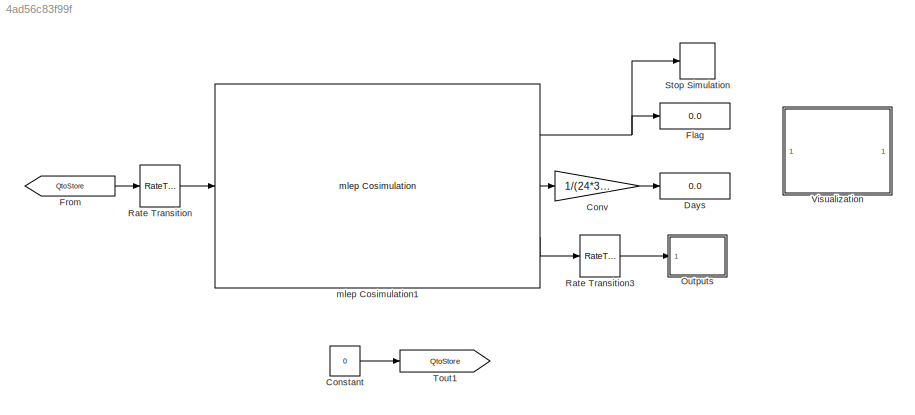
MODEL slx_4ad56c83f99f
KIND model
CONFIG AbsTol = auto
CONFIG FixedStep = 1
CONFIG MaxStep = auto
CONFIG MinStep = auto
CONFIG RelTol = 1e-3
CONFIG SampleTimeConstraint = Unconstrained
CONFIG Solver = ode3
CONFIG SolverMode = Auto
CONFIG SolverName = ode3
CONFIG StartTime = 0.0
CONFIG StopTime = 24*3600
BLOCK [Constant] Constant
  Value = 0
BLOCK [Gain] Conv
  Gain = 1/(24*3600)
  OutDataTypeStr = Inherit: Inherit via internal rule
  ParamDataTypeStr = Inherit: Inherit via internal rule
  SaturateOnIntegerOverflow = off
BLOCK [Display] Days
  Decimation = 1
  Ports = [1]
BLOCK [Display] Flag
  Decimation = 1
  Ports = [1]
BLOCK [From] From
  GotoTag = QtoStore
  TagVisibility = global
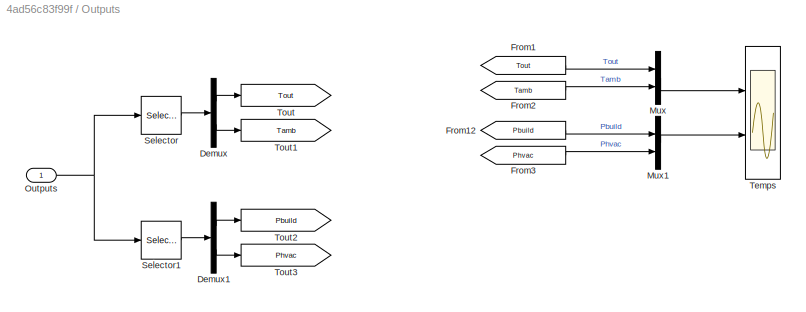
BLOCK [SubSystem] Outputs
  Ports = [1]
  RequestExecContextInheritance = off
BLOCK [Demux] Outputs/Demux
  DisplayOption = bar
  Outputs = 2
  Ports = [1, 2]
BLOCK [Demux] Outputs/Demux1
  DisplayOption = bar
  Outputs = 2
  Ports = [1, 2]
BLOCK [From] Outputs/From1
  GotoTag = Tout
  TagVisibility = global
BLOCK [From] Outputs/From12
  GotoTag = Pbuild
  TagVisibility = global
BLOCK [From] Outputs/From2
  GotoTag = Tamb
  TagVisibility = global
BLOCK [From] Outputs/From3
  GotoTag = Phvac
  TagVisibility = global
BLOCK [Mux] Outputs/Mux
  DisplayOption = bar
  Inputs = 2
  Ports = [2, 1]
BLOCK [Mux] Outputs/Mux1
  DisplayOption = bar
  Inputs = 2
  Ports = [2, 1]
BLOCK [Inport] Outputs/Outputs
  IconDisplay = Port number
BLOCK [Selector] Outputs/Selector
  Indices = [1:2]
  InputPortWidth = 4
  Ports = [1, 1]
BLOCK [Selector] Outputs/Selector1
  Indices = [3:4]
  InputPortWidth = 4
  Ports = [1, 1]
BLOCK [Scope] Outputs/Temps
  DataFormat = StructureWithTime
  Floating = off
  LegendLocations = 0.85104     0.90663     0.10235    0.043551\n 0.8354     0.43964     0.11799    0.043551
  LimitDataPoints = off
  NumInputPorts = 2
  Ports = [2]
  SampleTime = 0
  ShowLegends = on
  TimeRange = 90000
  YMax = 35~14000
  YMin = 0~0
BLOCK [Goto] Outputs/Tout
  GotoTag = Tout
  TagVisibility = global
BLOCK [Goto] Outputs/Tout1
  GotoTag = Tamb
  TagVisibility = global
BLOCK [Goto] Outputs/Tout2
  GotoTag = Pbuild
  TagVisibility = global
BLOCK [Goto] Outputs/Tout3
  GotoTag = Phvac
  TagVisibility = global
BLOCK [RateTransition] Rate Transition
BLOCK [RateTransition] Rate Transition3
BLOCK [Stop] Stop Simulation
BLOCK [Goto] Tout1
  GotoTag = QtoStore
  TagVisibility = global
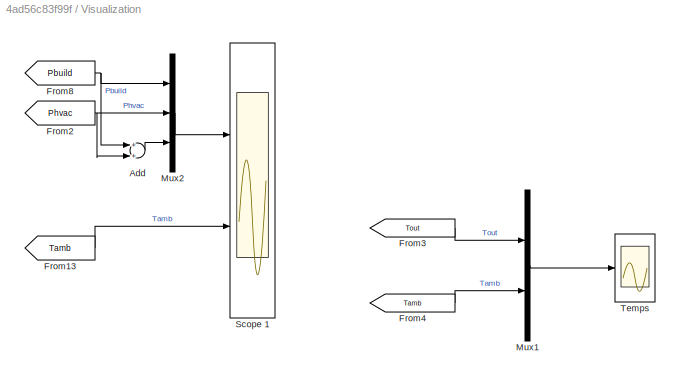
BLOCK [SubSystem] Visualization
  Ports = []
  RequestExecContextInheritance = off
BLOCK [Sum] Visualization/Add
  InputSameDT = off
  OutDataTypeStr = Inherit: Inherit via internal rule
  Ports = [2, 1]
  SaturateOnIntegerOverflow = off
BLOCK [From] Visualization/From13
  GotoTag = Tamb
  TagVisibility = global
BLOCK [From] Visualization/From2
  GotoTag = Phvac
  TagVisibility = global
BLOCK [From] Visualization/From3
  GotoTag = Tout
  TagVisibility = global
BLOCK [From] Visualization/From4
  GotoTag = Tamb
  TagVisibility = global
BLOCK [From] Visualization/From8
  GotoTag = Pbuild
  TagVisibility = global
BLOCK [Mux] Visualization/Mux1
  DisplayOption = bar
  Inputs = 2
  Ports = [2, 1]
BLOCK [Mux] Visualization/Mux2
  DisplayOption = bar
  Inputs = 3
  Ports = [3, 1]
BLOCK [Scope] Visualization/Scope 1
  DataFormat = StructureWithTime
  Floating = off
  LimitDataPoints = off
  NumInputPorts = 2
  Ports = [2]
  SampleTime = 0
  SaveName = ScopeData4
  ShowLegends = on
  TimeRange = 86400
  YMax = 1.5e+06~25
  YMin = -4e+06~-30
  ZoomMode = yonly
BLOCK [Scope] Visualization/Temps
  DataFormat = StructureWithTime
  Floating = off
  LegendLocations = 0.84115     0.86307     0.11017    0.081754
  LimitDataPoints = off
  NumInputPorts = 1
  Ports = [1]
  SampleTime = 0
  SaveName = ScopeData1
  ShowLegends = on
  TimeRange = 90000
  YMax = 40
  YMin = -40
BLOCK [Reference] mlep Cosimulation1  REF=refrigeration/mlep Cosimulation  (lib defined in slx_e5051c2510bc)
  Ports = [1, 3]
  SourceBlock = refrigeration/mlep Cosimulation
  SourceType = S-function: mlepCosim
  bcvtbpath = '<userpath>/Documents/git/refrigeration/RefrigerationLibrary/bcvtb'
  idf = 'super_noSi_noCa'
  numinput = 1
  numoutput = 4
  progname = 'runenergyplus'
  step = 300
  timeout = 2000
  weather = 'USA_FL_Miami.Intl.AP.722020_TMY3'
LINE Constant:1 -> Tout1:1
LINE Conv:1 -> Days:1
LINE From:1 -> Rate Transition:1
LINE Outputs/Demux1:1 -> Outputs/Tout2:1
LINE Outputs/Demux1:2 -> Outputs/Tout3:1
LINE Outputs/Demux:1 -> Outputs/Tout:1
LINE Outputs/Demux:2 -> Outputs/Tout1:1
LINE Outputs/From12:1 -> Outputs/Mux1:1
LINE Outputs/From1:1 -> Outputs/Mux:1
LINE Outputs/From2:1 -> Outputs/Mux:2
LINE Outputs/From3:1 -> Outputs/Mux1:2
LINE Outputs/Mux1:1 -> Outputs/Temps:2
LINE Outputs/Mux:1 -> Outputs/Temps:1
NET Outputs/Outputs:1 -> Outputs/Selector1:1, Outputs/Selector:1
LINE Outputs/Selector1:1 -> Outputs/Demux1:1
LINE Outputs/Selector:1 -> Outputs/Demux:1
LINE Rate Transition3:1 -> Outputs:1
LINE Rate Transition:1 -> mlep Cosimulation1:1
LINE Visualization/Add:1 -> Visualization/Mux2:3
LINE Visualization/From13:1 -> Visualization/Scope 1:2
NET Visualization/From2:1 -> Visualization/Add:2, Visualization/Mux2:2
LINE Visualization/From3:1 -> Visualization/Mux1:1
LINE Visualization/From4:1 -> Visualization/Mux1:2
NET Visualization/From8:1 -> Visualization/Add:1, Visualization/Mux2:1
LINE Visualization/Mux1:1 -> Visualization/Temps:1
LINE Visualization/Mux2:1 -> Visualization/Scope 1:1
NET mlep Cosimulation1:1 -> Flag:1, Stop Simulation:1
LINE mlep Cosimulation1:2 -> Conv:1
LINE mlep Cosimulation1:3 -> Rate Transition3:1
note: NET lines group one-source signal fan-out (src -> all destinations, sorted); 1:1 wires keep LINE
